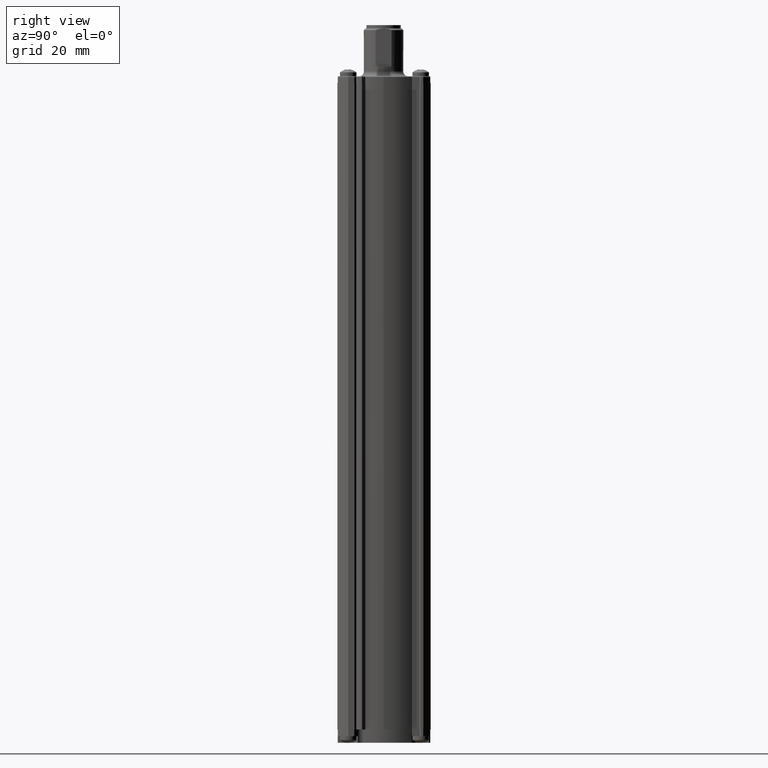
[diagram: clean part render]
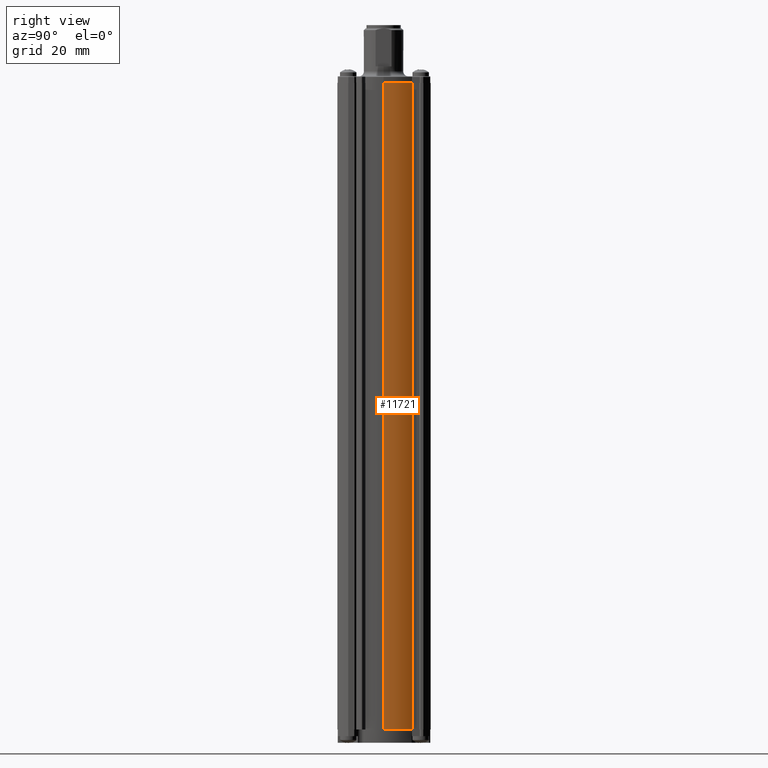
[diagram: same view with one face highlighted and labeled with its STEP entity id]
A machine part, right view. The second image highlights one B-rep face of the part: STEP entity #11721.
In plain terms, the highlighted cylindrical surface (partial cylindrical patch) has radius 15 mm, axis along (-0, 0, 1).
Its self-contained STEP definition (entity closure, byte-faithful):
#11 = CARTESIAN_POINT ( 'NONE',  ( 0.000000000000000000, -9.999999999999999799E-13, -197.9999999999989484 ) ) ;
#55 = LINE ( 'NONE', #12952, #9262 ) ;
#962 = VERTEX_POINT ( 'NONE', #4507 ) ;
#1170 = VECTOR ( 'NONE', #4978, 1000.000000000000000 ) ;
#1538 = CIRCLE ( 'NONE', #7804, 15.00000000000000000 ) ;
#1966 = ORIENTED_EDGE ( 'NONE', *, *, #9120, .F. ) ;
#3296 = CIRCLE ( 'NONE', #17935, 15.00000000000000000 ) ;
#4304 = CYLINDRICAL_SURFACE ( 'NONE', #5463, 15.00000000000000000 ) ;
#4398 = CARTESIAN_POINT ( 'NONE',  ( 0.000000000000000000, -9.999999999999999799E-13, -1.999999999998947064 ) ) ;
#4507 = CARTESIAN_POINT ( 'NONE',  ( 15.00000000000000000, -9.400000000000000336E-13, -1.999999999998947064 ) ) ;
#4916 = EDGE_CURVE ( 'NONE', #10316, #962, #3296, .T. ) ;
#4978 = DIRECTION ( 'NONE',  ( -0.000000000000000000, 0.000000000000000000, 1.000000000000000000 ) ) ;
#5463 = AXIS2_PLACEMENT_3D ( 'NONE', #11, #11599, #5802 ) ;
#5465 = ORIENTED_EDGE ( 'NONE', *, *, #4916, .T. ) ;
#5611 = DIRECTION ( 'NONE',  ( 0.000000000000000000, 0.000000000000000000, -1.000000000000000000 ) ) ;
#5802 = DIRECTION ( 'NONE',  ( 1.000000000000000000, 3.999999999999998733E-15, 0.000000000000000000 ) ) ;
#6034 = EDGE_LOOP ( 'NONE', ( #16461, #1966, #12441, #5465 ) ) ;
#7019 = EDGE_CURVE ( 'NONE', #11930, #962, #10400, .T. ) ;
#7198 = DIRECTION ( 'NONE',  ( -1.000000000000000000, -3.999999999999998733E-15, 0.000000000000000000 ) ) ;
#7804 = AXIS2_PLACEMENT_3D ( 'NONE', #11967, #15043, #7922 ) ;
#7922 = DIRECTION ( 'NONE',  ( -1.000000000000000000, -3.999999999999998733E-15, 0.000000000000000000 ) ) ;
#8147 = EDGE_CURVE ( 'NONE', #11404, #10316, #55, .T. ) ;
#8621 = CARTESIAN_POINT ( 'NONE',  ( 12.29999999999996518, 8.585452812751569240, -197.9999999999989484 ) ) ;
#9120 = EDGE_CURVE ( 'NONE', #11404, #11930, #1538, .T. ) ;
#9262 = VECTOR ( 'NONE', #9964, 1000.000000000000000 ) ;
#9964 = DIRECTION ( 'NONE',  ( -0.000000000000000000, 0.000000000000000000, 1.000000000000000000 ) ) ;
#10179 = CARTESIAN_POINT ( 'NONE',  ( 15.00000000000000000, -9.400000000000000336E-13, -197.9999999999989484 ) ) ;
#10316 = VERTEX_POINT ( 'NONE', #10673 ) ;
#10400 = LINE ( 'NONE', #11992, #1170 ) ;
#10673 = CARTESIAN_POINT ( 'NONE',  ( 12.29999999999996518, 8.585452812751569240, -1.999999999998947064 ) ) ;
#11404 = VERTEX_POINT ( 'NONE', #8621 ) ;
#11599 = DIRECTION ( 'NONE',  ( -0.000000000000000000, 0.000000000000000000, 1.000000000000000000 ) ) ;
#11721 = ADVANCED_FACE ( 'NONE', ( #12628 ), #4304, .T. ) ;
#11930 = VERTEX_POINT ( 'NONE', #10179 ) ;
#11967 = CARTESIAN_POINT ( 'NONE',  ( 0.000000000000000000, -9.999999999999999799E-13, -197.9999999999989484 ) ) ;
#11992 = CARTESIAN_POINT ( 'NONE',  ( 15.00000000000000000, -9.400000000000000336E-13, -197.9999999999989484 ) ) ;
#12441 = ORIENTED_EDGE ( 'NONE', *, *, #8147, .T. ) ;
#12628 = FACE_OUTER_BOUND ( 'NONE', #6034, .T. ) ;
#12952 = CARTESIAN_POINT ( 'NONE',  ( 12.29999999999996518, 8.585452812751569240, -197.9999999999989484 ) ) ;
#15043 = DIRECTION ( 'NONE',  ( 0.000000000000000000, 0.000000000000000000, -1.000000000000000000 ) ) ;
#16461 = ORIENTED_EDGE ( 'NONE', *, *, #7019, .F. ) ;
#17935 = AXIS2_PLACEMENT_3D ( 'NONE', #4398, #5611, #7198 ) ;